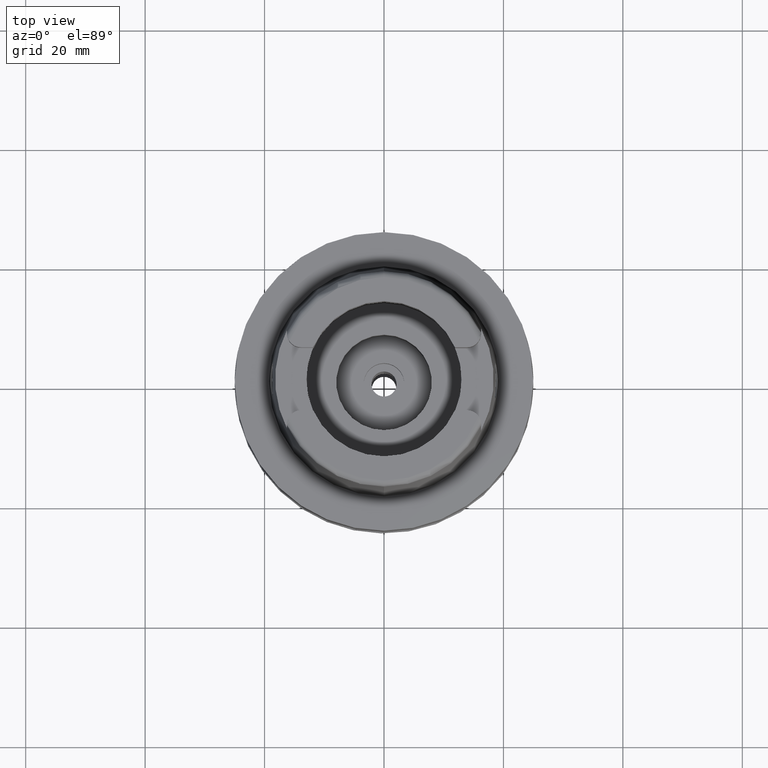
[diagram: clean part render]
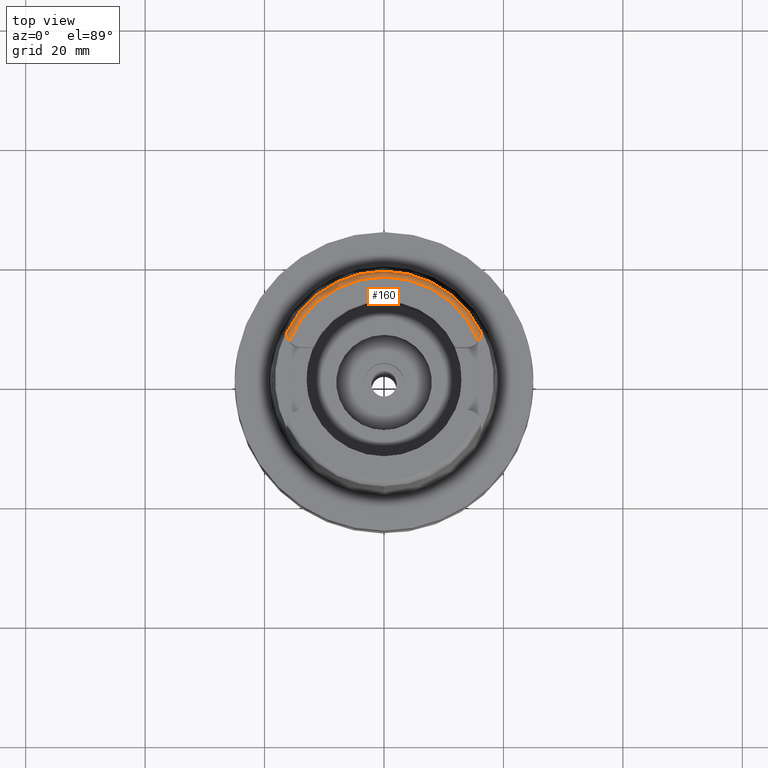
[diagram: same view with one face highlighted and labeled with its STEP entity id]
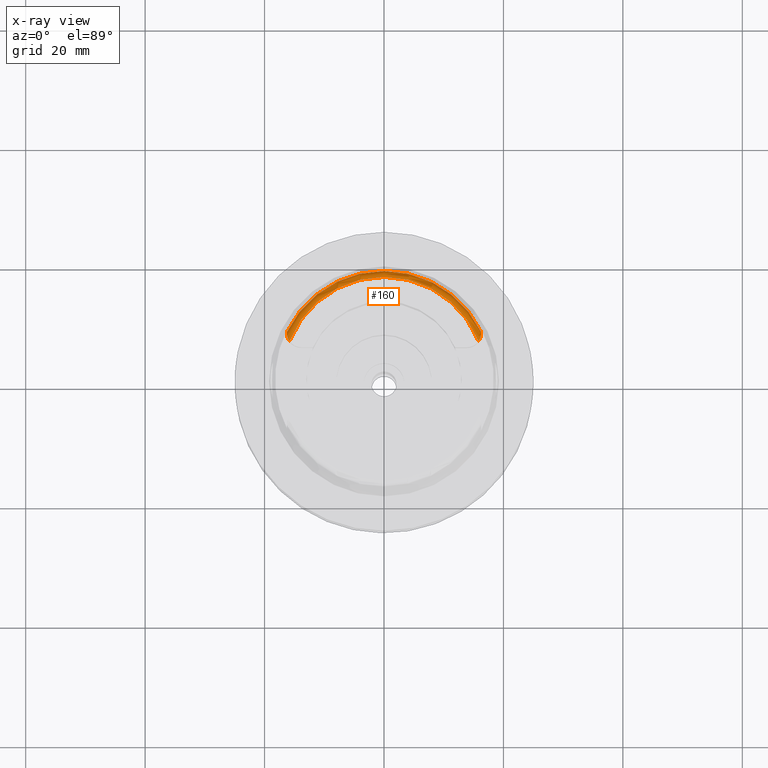
[diagram: x-ray of the same camera — body ghosted, the highlighted face saturated]
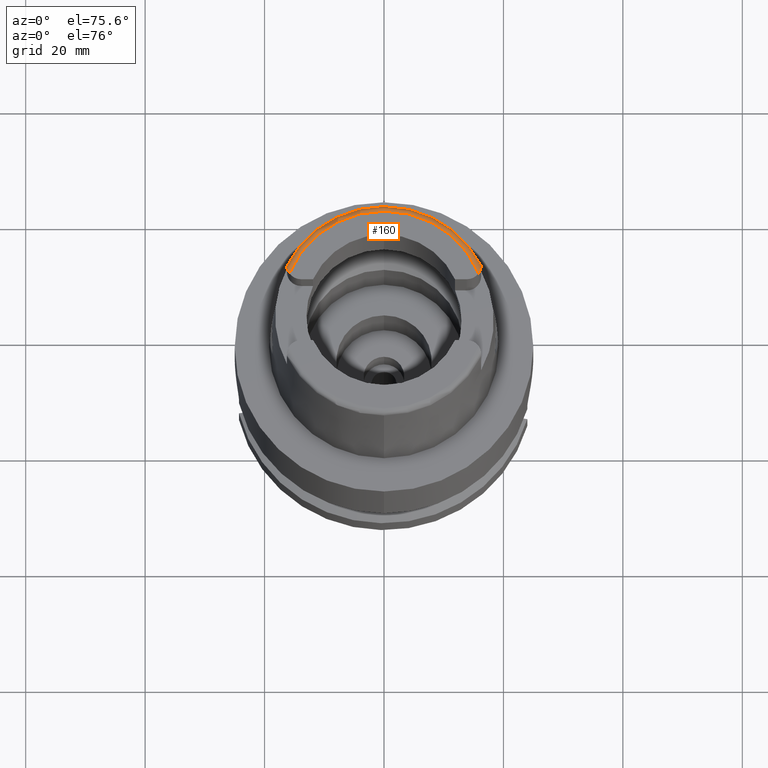
[diagram: same view with one face highlighted and labeled with its STEP entity id]
A machine part, top view. The second image highlights one B-rep face of the part: STEP entity #160.
The next image is the same camera in x-ray: the body ghosted, the highlighted face saturated — about 0% of this face is hidden behind the body in this view.
A second angle (auxiliary view) of the same face is appended — the face is thin or edge-on in the first view.
In plain terms, the highlighted toroidal blend (fillet) surface has major radius 17.0488 mm and minor (blend) radius 1 mm.
Its self-contained STEP definition (entity closure, byte-faithful):
#13 = ORIENTED_EDGE ( 'NONE', *, *, #3844, .F. ) ;
#21 = CARTESIAN_POINT ( 'NONE',  ( -16.22523236542759051, 7.243507654081210667, 24.69462219241340861 ) ) ;
#126 = CARTESIAN_POINT ( 'NONE',  ( 16.25997406183000393, 7.831071151783000950, 24.04993752584000077 ) ) ;
#160 = ADVANCED_FACE ( 'NONE', ( #3298 ), #3238, .T. ) ;
#191 = EDGE_CURVE ( 'NONE', #2548, #3039, #2656, .T. ) ;
#215 = CIRCLE ( 'NONE', #4244, 18.04750486565000145 ) ;
#347 = CARTESIAN_POINT ( 'NONE',  ( -16.12973708432351572, 6.861861269493429560, 24.88356850858454195 ) ) ;
#362 = CARTESIAN_POINT ( 'NONE',  ( 16.26000000000000156, 7.649999999999999467, 24.38968791394999869 ) ) ;
#367 = ORIENTED_EDGE ( 'NONE', *, *, #3731, .F. ) ;
#377 = EDGE_CURVE ( 'NONE', #914, #4474, #3810, .T. ) ;
#422 = CARTESIAN_POINT ( 'NONE',  ( -15.87413869004783429, 6.349550716507886605, 25.00000000000001066 ) ) ;
#434 = ORIENTED_EDGE ( 'NONE', *, *, #947, .T. ) ;
#446 = CARTESIAN_POINT ( 'NONE',  ( -16.26000000000000156, 7.649999999999999467, 24.38968791394999869 ) ) ;
#482 = CARTESIAN_POINT ( 'NONE',  ( 0.0000000000000000000, 18.04750486565000145, 24.04993752584000077 ) ) ;
#654 = CARTESIAN_POINT ( 'NONE',  ( 16.03654621743806530, 6.642681562723547373, 24.95132460843890598 ) ) ;
#669 = CARTESIAN_POINT ( 'NONE',  ( -16.26000000000000156, 7.817317801090477580, 24.16880882035387401 ) ) ;
#721 = CARTESIAN_POINT ( 'NONE',  ( 16.24636151178291854, 7.393822977427398691, 24.59918985727813734 ) ) ;
#725 = B_SPLINE_CURVE_WITH_KNOTS ( 'NONE', 3,
 ( #3719, #422, #3425, #1101, #3396, #4198, #2960, #1486, #347, #2616, #2248, #2565, #21, #2301, #4093, #1806, #1441, #4492 ),
 .UNSPECIFIED., .F., .F.,
 ( 4, 2, 2, 2, 2, 2, 2, 2, 4 ),
 ( 0.0000000000000000000, 0.1249999999999993061, 0.1874999999999979461, 0.2499999999999965583, 0.4999999999999938938, 0.6249999999999932276, 0.6874999999999937828, 0.7499999999999943379, 1.000000000000000000 ),
 .UNSPECIFIED. ) ;
#914 = VERTEX_POINT ( 'NONE', #2112 ) ;
#947 = EDGE_CURVE ( 'NONE', #1187, #3607, #1821, .T. ) ;
#1014 = CARTESIAN_POINT ( 'NONE',  ( 16.14809069452766721, 6.925558306852739321, 24.85472361207783010 ) ) ;
#1070 = CARTESIAN_POINT ( 'NONE',  ( 16.26000000000000867, 7.611329751621706663, 24.42859379647605067 ) ) ;
#1101 = CARTESIAN_POINT ( 'NONE',  ( -15.95144356154203003, 6.477638738795012507, 24.98609701425393581 ) ) ;
#1187 = VERTEX_POINT ( 'NONE', #1263 ) ;
#1263 = CARTESIAN_POINT ( 'NONE',  ( -15.84131538932999739, 6.301800480794000237, 25.00000000000000000 ) ) ;
#1272 = CARTESIAN_POINT ( 'NONE',  ( 16.26000000000000156, 7.756962564231998591, 24.28207358167978214 ) ) ;
#1441 = CARTESIAN_POINT ( 'NONE',  ( -16.26000000000000156, 7.572651066010215537, 24.46750816763797687 ) ) ;
#1475 = CARTESIAN_POINT ( 'NONE',  ( 16.25344999190278017, 7.471621253099321791, 24.54346798177478561 ) ) ;
#1486 = CARTESIAN_POINT ( 'NONE',  ( -16.08062528897661281, 6.733890412159460936, 24.92885701904044282 ) ) ;
#1591 = CARTESIAN_POINT ( 'NONE',  ( 16.26000000000000156, 7.817315007466449472, 24.16882291973576002 ) ) ;
#1597 = EDGE_CURVE ( 'NONE', #4474, #3607, #4684, .T. ) ;
#1648 = CARTESIAN_POINT ( 'NONE',  ( -16.26000040461999774, 7.831014550392999318, 24.04994510191000145 ) ) ;
#1806 = CARTESIAN_POINT ( 'NONE',  ( -16.25642477869863711, 7.477017852878877768, 24.54390723193709789 ) ) ;
#1821 = CIRCLE ( 'NONE', #3579, 17.04875252221999560 ) ;
#1841 = ORIENTED_EDGE ( 'NONE', *, *, #3044, .F. ) ;
#2112 = CARTESIAN_POINT ( 'NONE',  ( 16.25997406183000393, 7.831071151783000950, 24.04993752584000077 ) ) ;
#2177 = CARTESIAN_POINT ( 'NONE',  ( 0.0000000000000000000, 0.0000000000000000000, 24.00000000000000000 ) ) ;
#2248 = CARTESIAN_POINT ( 'NONE',  ( -16.20094017609105563, 7.119272069706039652, 24.76398178789159488 ) ) ;
#2301 = CARTESIAN_POINT ( 'NONE',  ( -16.23497671329191760, 7.304405504973698449, 24.65771027314357866 ) ) ;
#2344 = ORIENTED_EDGE ( 'NONE', *, *, #1597, .F. ) ;
#2386 = CARTESIAN_POINT ( 'NONE',  ( 0.0000000000000000000, 0.0000000000000000000, 24.04993752584000077 ) ) ;
#2402 = CARTESIAN_POINT ( 'NONE',  ( 16.26000000000000156, 7.649999999999999467, 24.38968791394999869 ) ) ;
#2499 = DIRECTION ( 'NONE',  ( 0.0000000000000000000, 0.0000000000000000000, -1.000000000000000000 ) ) ;
#2500 = CARTESIAN_POINT ( 'NONE',  ( 16.22841111542133419, 7.245449911095669826, 24.69778847608278838 ) ) ;
#2516 = CARTESIAN_POINT ( 'NONE',  ( -16.26000000000000156, 7.756979617626143408, 24.28205642436720879 ) ) ;
#2548 = VERTEX_POINT ( 'NONE', #446 ) ;
#2555 = CARTESIAN_POINT ( 'NONE',  ( 15.90698849390802927, 6.397339508099695315, 25.00000000000000355 ) ) ;
#2565 = CARTESIAN_POINT ( 'NONE',  ( -16.21969524431224841, 7.212695731795866649, 24.71244040303953682 ) ) ;
#2616 = CARTESIAN_POINT ( 'NONE',  ( -16.18557780420363912, 7.055667693508270943, 24.79579171509116975 ) ) ;
#2656 = B_SPLINE_CURVE_WITH_KNOTS ( 'NONE', 3,
 ( #2898, #2516, #669, #4772 ),
 .UNSPECIFIED., .F., .F.,
 ( 4, 4 ),
 ( 0.0000000000000000000, 1.000000000000000000 ),
 .UNSPECIFIED. ) ;
#2671 = CARTESIAN_POINT ( 'NONE',  ( 15.84131538932999739, 6.301800480795000325, 25.00000000000000000 ) ) ;
#2853 = DIRECTION ( 'NONE',  ( -0.0008255998758100714869, -0.9999996591923645539, 0.0000000000000000000 ) ) ;
#2883 = CARTESIAN_POINT ( 'NONE',  ( 16.26000000000000156, 7.649999999999999467, 24.38968791394999869 ) ) ;
#2885 = CARTESIAN_POINT ( 'NONE',  ( 0.0000000000000000000, 0.0000000000000000000, 25.00000000000000000 ) ) ;
#2886 = CARTESIAN_POINT ( 'NONE',  ( 16.24895756944022551, 7.419513827744389722, 24.58132045728403270 ) ) ;
#2898 = CARTESIAN_POINT ( 'NONE',  ( -16.26000000000000156, 7.649999999999999467, 24.38968791394999869 ) ) ;
#2917 = DIRECTION ( 'NONE',  ( 0.0000000000000000000, 0.0000000000000000000, 1.000000000000000000 ) ) ;
#2928 = CARTESIAN_POINT ( 'NONE',  ( 15.96837233911639942, 6.501604020561860153, 24.98609274526825885 ) ) ;
#2960 = CARTESIAN_POINT ( 'NONE',  ( -16.00845146624612880, 6.584544753028886532, 24.96564954869214503 ) ) ;
#3039 = VERTEX_POINT ( 'NONE', #1648 ) ;
#3044 = EDGE_CURVE ( 'NONE', #4340, #914, #215, .T. ) ;
#3085 = ORIENTED_EDGE ( 'NONE', *, *, #377, .F. ) ;
#3163 = DIRECTION ( 'NONE',  ( 0.0000000000000000000, 0.0000000000000000000, -1.000000000000000000 ) ) ;
#3238 = TOROIDAL_SURFACE ( 'NONE', #4290, 17.04875252221999560, 1.000000000000000000 ) ;
#3298 = FACE_OUTER_BOUND ( 'NONE', #3867, .T. ) ;
#3305 = CARTESIAN_POINT ( 'NONE',  ( 16.12651798942929204, 6.861276695969286799, 24.88066937906257436 ) ) ;
#3360 = CARTESIAN_POINT ( 'NONE',  ( 16.25907012570166543, 7.568109279177225979, 24.46714854332983435 ) ) ;
#3396 = CARTESIAN_POINT ( 'NONE',  ( -15.96628188518519487, 6.504236805497103369, 24.98175233120828764 ) ) ;
#3425 = CARTESIAN_POINT ( 'NONE',  ( -15.90589042189400182, 6.399477940942067455, 24.99652425356348928 ) ) ;
#3553 = DIRECTION ( 'NONE',  ( -0.9009556354130529021, 0.4339112155930774928, 0.0000000000000000000 ) ) ;
#3579 = AXIS2_PLACEMENT_3D ( 'NONE', #2885, #2499, #4035 ) ;
#3607 = VERTEX_POINT ( 'NONE', #2671 ) ;
#3684 = CARTESIAN_POINT ( 'NONE',  ( 16.25516997160416111, 7.496579681004577722, 24.52445396010208611 ) ) ;
#3707 = CARTESIAN_POINT ( 'NONE',  ( 16.20473417851390252, 7.122159436248383990, 24.76566879203932103 ) ) ;
#3719 = CARTESIAN_POINT ( 'NONE',  ( -15.84131538932999739, 6.301800480794000237, 25.00000000000000000 ) ) ;
#3731 = EDGE_CURVE ( 'NONE', #1187, #2548, #725, .T. ) ;
#3810 = B_SPLINE_CURVE_WITH_KNOTS ( 'NONE', 3,
 ( #126, #1591, #1272, #2402 ),
 .UNSPECIFIED., .F., .F.,
 ( 4, 4 ),
 ( 0.0000000000000000000, 1.000000000000000000 ),
 .UNSPECIFIED. ) ;
#3844 = EDGE_CURVE ( 'NONE', #3039, #4340, #4704, .T. ) ;
#3867 = EDGE_LOOP ( 'NONE', ( #434, #2344, #3085, #1841, #13, #4026, #367 ) ) ;
#4026 = ORIENTED_EDGE ( 'NONE', *, *, #191, .F. ) ;
#4035 = DIRECTION ( 'NONE',  ( -0.9291773910543710269, 0.3696341109169885564, 0.0000000000000000000 ) ) ;
#4036 = CARTESIAN_POINT ( 'NONE',  ( 16.09040545767916441, 6.767027976405937117, 24.91397926999750467 ) ) ;
#4093 = CARTESIAN_POINT ( 'NONE',  ( -16.23936363164267149, 7.335976751363695314, 24.63762957557498012 ) ) ;
#4198 = CARTESIAN_POINT ( 'NONE',  ( -15.99518504837750932, 6.558515866606572153, 24.97132509189875194 ) ) ;
#4244 = AXIS2_PLACEMENT_3D ( 'NONE', #2386, #3163, #4682 ) ;
#4277 = DIRECTION ( 'NONE',  ( 0.0000000000000000000, 0.0000000000000000000, -1.000000000000000000 ) ) ;
#4290 = AXIS2_PLACEMENT_3D ( 'NONE', #2177, #2917, #2853 ) ;
#4340 = VERTEX_POINT ( 'NONE', #482 ) ;
#4462 = AXIS2_PLACEMENT_3D ( 'NONE', #4646, #4277, #3553 ) ;
#4474 = VERTEX_POINT ( 'NONE', #2883 ) ;
#4492 = CARTESIAN_POINT ( 'NONE',  ( -16.26000000000000156, 7.649999999999999467, 24.38968791394999869 ) ) ;
#4646 = CARTESIAN_POINT ( 'NONE',  ( 0.0000000000000000000, 0.0000000000000000000, 24.04993752584000077 ) ) ;
#4682 = DIRECTION ( 'NONE',  ( 0.0000000000000000000, 1.000000000000000000, 0.0000000000000000000 ) ) ;
#4684 = B_SPLINE_CURVE_WITH_KNOTS ( 'NONE', 3,
 ( #362, #1070, #3360, #3684, #1475, #2886, #721, #2500, #3707, #1014, #3305, #4036, #4856, #4877, #654, #2928, #2555, #4830 ),
 .UNSPECIFIED., .F., .F.,
 ( 4, 2, 2, 2, 2, 2, 2, 2, 4 ),
 ( 0.0000000000000000000, 0.1249999999999990563, 0.1874999999999979183, 0.2499999999999967804, 0.4999999999999986677, 0.6249999999999983347, 0.6874999999999978906, 0.7499999999999974465, 1.000000000000000000 ),
 .UNSPECIFIED. ) ;
#4704 = CIRCLE ( 'NONE', #4462, 18.04750486565000145 ) ;
#4772 = CARTESIAN_POINT ( 'NONE',  ( -16.26000040461999774, 7.831014550392999318, 24.04994510191000145 ) ) ;
#4830 = CARTESIAN_POINT ( 'NONE',  ( 15.84131538932999739, 6.301800480795000325, 25.00000000000000000 ) ) ;
#4856 = CARTESIAN_POINT ( 'NONE',  ( 16.07774256274927893, 6.735973626731387220, 24.92414777371880419 ) ) ;
#4877 = CARTESIAN_POINT ( 'NONE',  ( 16.05121539349480742, 6.674633249386897837, 24.94261519464732046 ) ) ;